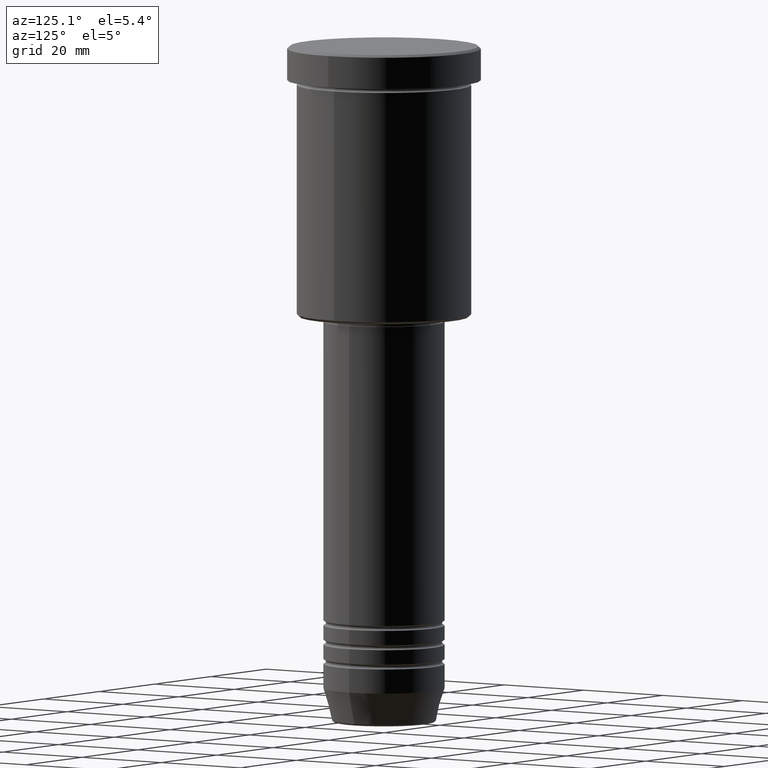
[diagram: clean part render]
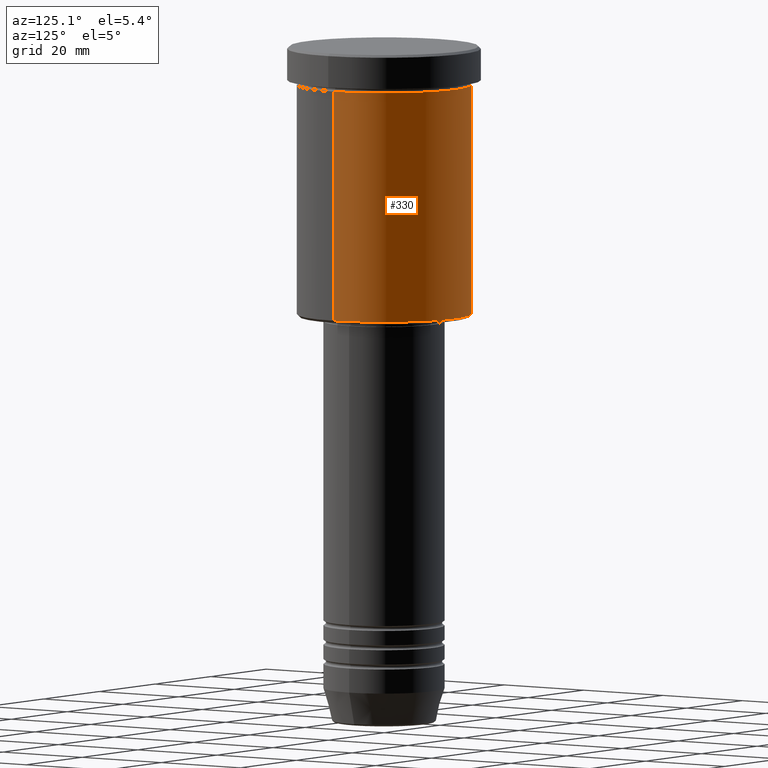
[diagram: same view with one face highlighted and labeled with its STEP entity id]
A machine part, auxiliary view. The second image highlights one B-rep face of the part: STEP entity #330.
In plain terms, the highlighted cylindrical surface (partial cylindrical patch) has radius 18 mm, axis along (-0, -0, 1).
Its self-contained STEP definition (entity closure, byte-faithful):
#45 = DIRECTION ( 'NONE',  ( -0.000000000000000000, -0.000000000000000000, 1.000000000000000000 ) ) ;
#78 = CARTESIAN_POINT ( 'NONE',  ( -18.00000000000000000, 2.204364238465235428E-15, -7.999999999999996447 ) ) ;
#126 = CARTESIAN_POINT ( 'NONE',  ( -18.00000000000000000, 2.204364238465235428E-15, -55.50000000000002132 ) ) ;
#138 = AXIS2_PLACEMENT_3D ( 'NONE', #684, #651, #670 ) ;
#141 = LINE ( 'NONE', #303, #602 ) ;
#183 = VERTEX_POINT ( 'NONE', #264 ) ;
#220 = AXIS2_PLACEMENT_3D ( 'NONE', #666, #1020, #567 ) ;
#264 = CARTESIAN_POINT ( 'NONE',  ( 18.00000000000000000, 0.000000000000000000, -7.999999999999996447 ) ) ;
#271 = ORIENTED_EDGE ( 'NONE', *, *, #1074, .F. ) ;
#288 = CARTESIAN_POINT ( 'NONE',  ( -18.00000000000000000, 2.204364238465235428E-15, 0.000000000000000000 ) ) ;
#303 = CARTESIAN_POINT ( 'NONE',  ( 18.00000000000000000, 0.000000000000000000, 0.000000000000000000 ) ) ;
#313 = FACE_OUTER_BOUND ( 'NONE', #894, .T. ) ;
#327 = DIRECTION ( 'NONE',  ( 1.000000000000000000, 0.000000000000000000, 0.000000000000000000 ) ) ;
#329 = CARTESIAN_POINT ( 'NONE',  ( 18.00000000000000000, 0.000000000000000000, -55.50000000000002132 ) ) ;
#330 = ADVANCED_FACE ( 'NONE', ( #313 ), #662, .T. ) ;
#382 = LINE ( 'NONE', #288, #414 ) ;
#410 = ORIENTED_EDGE ( 'NONE', *, *, #788, .T. ) ;
#414 = VECTOR ( 'NONE', #612, 1000.000000000000000 ) ;
#440 = VERTEX_POINT ( 'NONE', #329 ) ;
#479 = ORIENTED_EDGE ( 'NONE', *, *, #1013, .T. ) ;
#495 = EDGE_CURVE ( 'NONE', #183, #1182, #615, .T. ) ;
#567 = DIRECTION ( 'NONE',  ( -1.000000000000000000, 0.000000000000000000, 0.000000000000000000 ) ) ;
#584 = CIRCLE ( 'NONE', #220, 18.00000000000000000 ) ;
#602 = VECTOR ( 'NONE', #45, 1000.000000000000000 ) ;
#612 = DIRECTION ( 'NONE',  ( -0.000000000000000000, -0.000000000000000000, 1.000000000000000000 ) ) ;
#615 = CIRCLE ( 'NONE', #632, 18.00000000000000000 ) ;
#632 = AXIS2_PLACEMENT_3D ( 'NONE', #782, #712, #327 ) ;
#651 = DIRECTION ( 'NONE',  ( -0.000000000000000000, -0.000000000000000000, 1.000000000000000000 ) ) ;
#662 = CYLINDRICAL_SURFACE ( 'NONE', #138, 18.00000000000000000 ) ;
#666 = CARTESIAN_POINT ( 'NONE',  ( 0.000000000000000000, 0.000000000000000000, -55.50000000000002132 ) ) ;
#670 = DIRECTION ( 'NONE',  ( 1.000000000000000000, 0.000000000000000000, 0.000000000000000000 ) ) ;
#673 = ORIENTED_EDGE ( 'NONE', *, *, #495, .F. ) ;
#684 = CARTESIAN_POINT ( 'NONE',  ( 0.000000000000000000, 0.000000000000000000, 0.000000000000000000 ) ) ;
#712 = DIRECTION ( 'NONE',  ( -0.000000000000000000, -0.000000000000000000, 1.000000000000000000 ) ) ;
#782 = CARTESIAN_POINT ( 'NONE',  ( 0.000000000000000000, 0.000000000000000000, -7.999999999999996447 ) ) ;
#788 = EDGE_CURVE ( 'NONE', #440, #1128, #584, .T. ) ;
#894 = EDGE_LOOP ( 'NONE', ( #410, #479, #673, #271 ) ) ;
#1013 = EDGE_CURVE ( 'NONE', #1128, #1182, #382, .T. ) ;
#1020 = DIRECTION ( 'NONE',  ( -0.000000000000000000, -0.000000000000000000, 1.000000000000000000 ) ) ;
#1074 = EDGE_CURVE ( 'NONE', #440, #183, #141, .T. ) ;
#1128 = VERTEX_POINT ( 'NONE', #126 ) ;
#1182 = VERTEX_POINT ( 'NONE', #78 ) ;